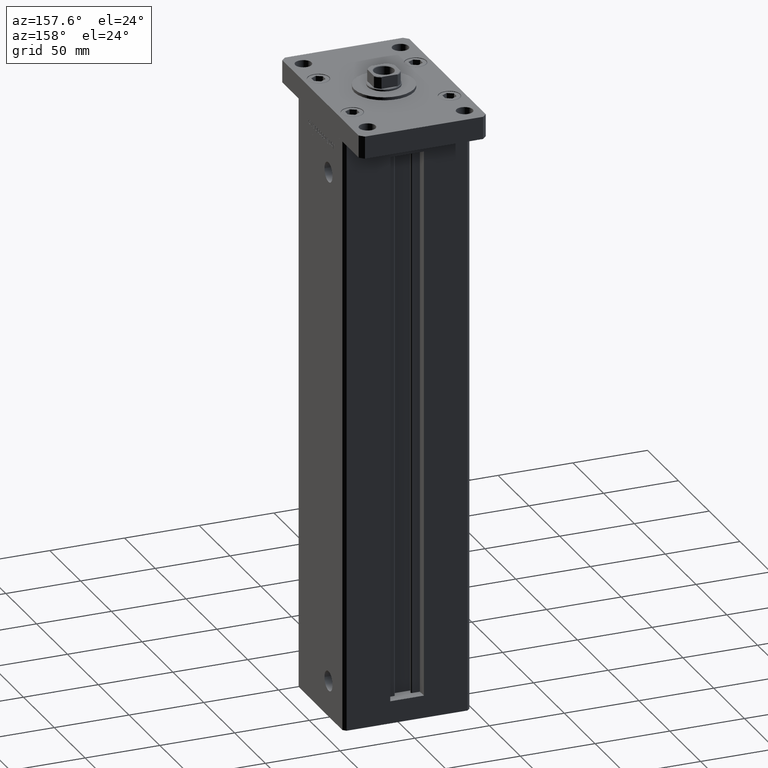
[diagram: clean part render]
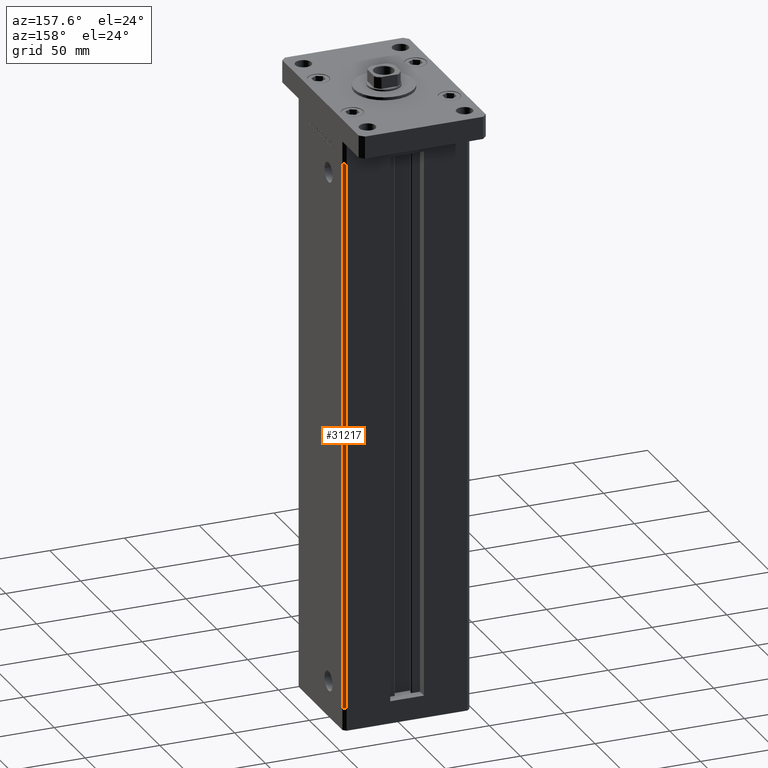
[diagram: same view with one face highlighted and labeled with its STEP entity id]
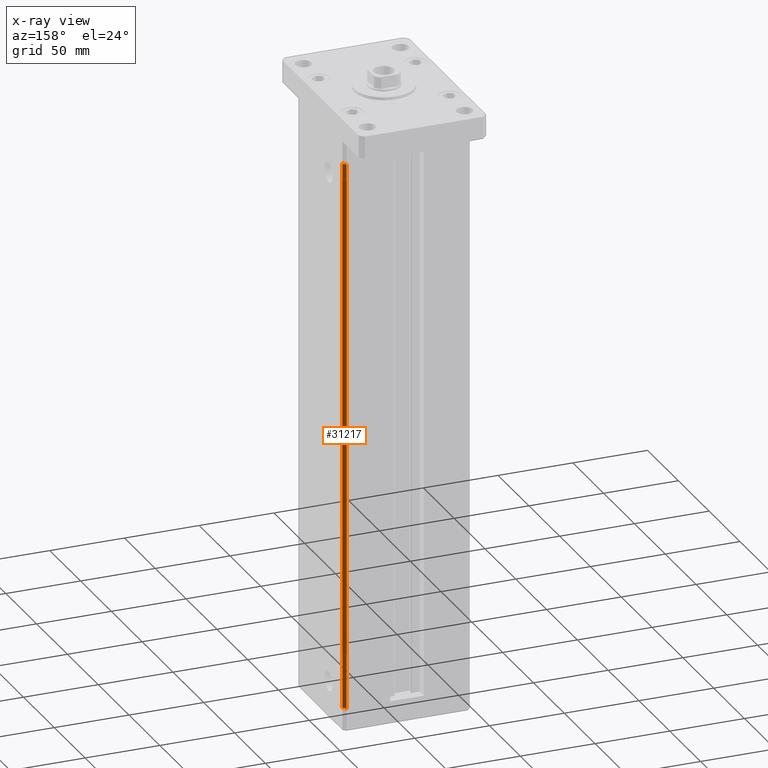
[diagram: x-ray of the same camera — body ghosted, the highlighted face saturated]
A machine part, auxiliary view. The second image highlights one B-rep face of the part: STEP entity #31217.
The next image is the same camera in x-ray: the body ghosted, the highlighted face saturated — about 0% of this face is hidden behind the body in this view.
In plain terms, the highlighted planar face has unit normal (0.7071, 0.7071, 0).
Its self-contained STEP definition (entity closure, byte-faithful):
#1449 = VERTEX_POINT ( 'NONE', #31767 ) ;
#1577 = DIRECTION ( 'NONE',  ( -0.7071067811865499042, 0.7071067811865451302, 0.000000000000000000 ) ) ;
#3445 = CARTESIAN_POINT ( 'NONE',  ( 42.50000000000000711, 35.50000000000001421, 368.5000000000000000 ) ) ;
#5312 = DIRECTION ( 'NONE',  ( -0.000000000000000000, -0.000000000000000000, -1.000000000000000000 ) ) ;
#6030 = CARTESIAN_POINT ( 'NONE',  ( 40.50000000000000000, 37.50000000000000711, 368.5000000000000000 ) ) ;
#6168 = CARTESIAN_POINT ( 'NONE',  ( 40.50000000000000000, 37.50000000000000711, 368.5000000000000000 ) ) ;
#7276 = CARTESIAN_POINT ( 'NONE',  ( 40.50000000000000000, 37.50000000000000711, 368.5000000000000000 ) ) ;
#8246 = ORIENTED_EDGE ( 'NONE', *, *, #38334, .T. ) ;
#9900 = VERTEX_POINT ( 'NONE', #29307 ) ;
#10186 = CARTESIAN_POINT ( 'NONE',  ( 40.50000000000000000, 37.50000000000000711, 368.5000000000000000 ) ) ;
#10560 = AXIS2_PLACEMENT_3D ( 'NONE', #6168, #31634, #1577 ) ;
#12898 = VERTEX_POINT ( 'NONE', #6030 ) ;
#14124 = LINE ( 'NONE', #47185, #27352 ) ;
#15406 = LINE ( 'NONE', #7276, #17662 ) ;
#17662 = VECTOR ( 'NONE', #48214, 1000.000000000000114 ) ;
#19369 = ORIENTED_EDGE ( 'NONE', *, *, #42237, .F. ) ;
#19982 = DIRECTION ( 'NONE',  ( -0.000000000000000000, -0.000000000000000000, -1.000000000000000000 ) ) ;
#20317 = EDGE_CURVE ( 'NONE', #12898, #9900, #15406, .T. ) ;
#27308 = VERTEX_POINT ( 'NONE', #30793 ) ;
#27352 = VECTOR ( 'NONE', #43108, 1000.000000000000114 ) ;
#29307 = CARTESIAN_POINT ( 'NONE',  ( 42.50000000000000711, 35.50000000000001421, 368.5000000000000000 ) ) ;
#30793 = CARTESIAN_POINT ( 'NONE',  ( 42.50000000000000711, 35.50000000000001421, 0.000000000000000000 ) ) ;
#31217 = ADVANCED_FACE ( 'NONE', ( #38698 ), #52246, .T. ) ;
#31634 = DIRECTION ( 'NONE',  ( 0.7071067811865451302, 0.7071067811865499042, -0.000000000000000000 ) ) ;
#31767 = CARTESIAN_POINT ( 'NONE',  ( 40.50000000000000000, 37.50000000000000711, 0.000000000000000000 ) ) ;
#34149 = VECTOR ( 'NONE', #5312, 1000.000000000000000 ) ;
#35398 = EDGE_LOOP ( 'NONE', ( #48646, #19369, #42147, #8246 ) ) ;
#36616 = VECTOR ( 'NONE', #19982, 1000.000000000000000 ) ;
#38334 = EDGE_CURVE ( 'NONE', #9900, #27308, #45430, .T. ) ;
#38698 = FACE_OUTER_BOUND ( 'NONE', #35398, .T. ) ;
#42147 = ORIENTED_EDGE ( 'NONE', *, *, #20317, .T. ) ;
#42237 = EDGE_CURVE ( 'NONE', #12898, #1449, #51106, .T. ) ;
#43108 = DIRECTION ( 'NONE',  ( 0.7071067811865500152, -0.7071067811865451302, 0.000000000000000000 ) ) ;
#45430 = LINE ( 'NONE', #3445, #36616 ) ;
#47185 = CARTESIAN_POINT ( 'NONE',  ( 40.50000000000000000, 37.50000000000000711, 0.000000000000000000 ) ) ;
#48214 = DIRECTION ( 'NONE',  ( 0.7071067811865500152, -0.7071067811865451302, 0.000000000000000000 ) ) ;
#48646 = ORIENTED_EDGE ( 'NONE', *, *, #50816, .F. ) ;
#50816 = EDGE_CURVE ( 'NONE', #1449, #27308, #14124, .T. ) ;
#51106 = LINE ( 'NONE', #10186, #34149 ) ;
#52246 = PLANE ( 'NONE',  #10560 ) ;